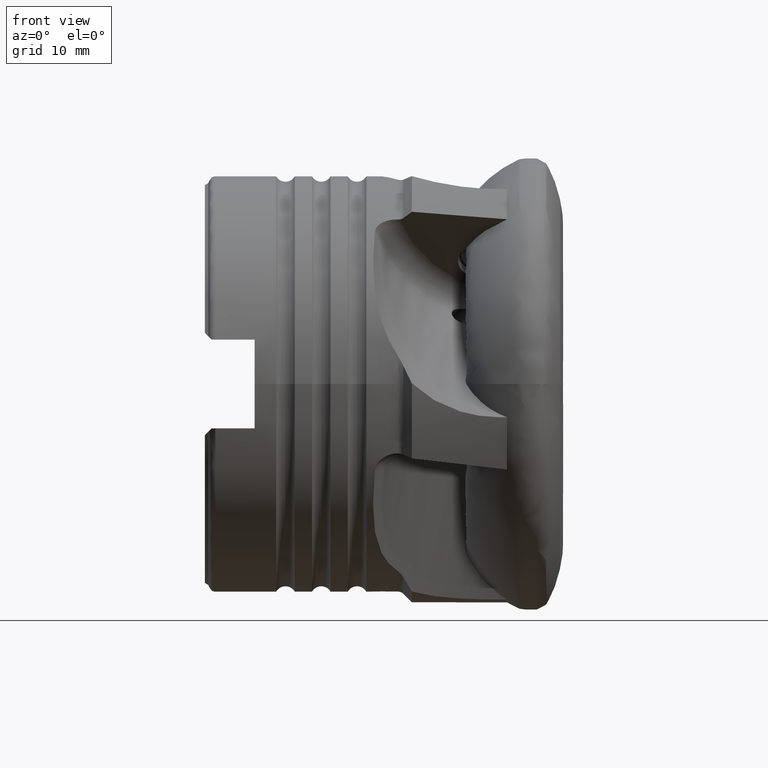
[diagram: clean part render]
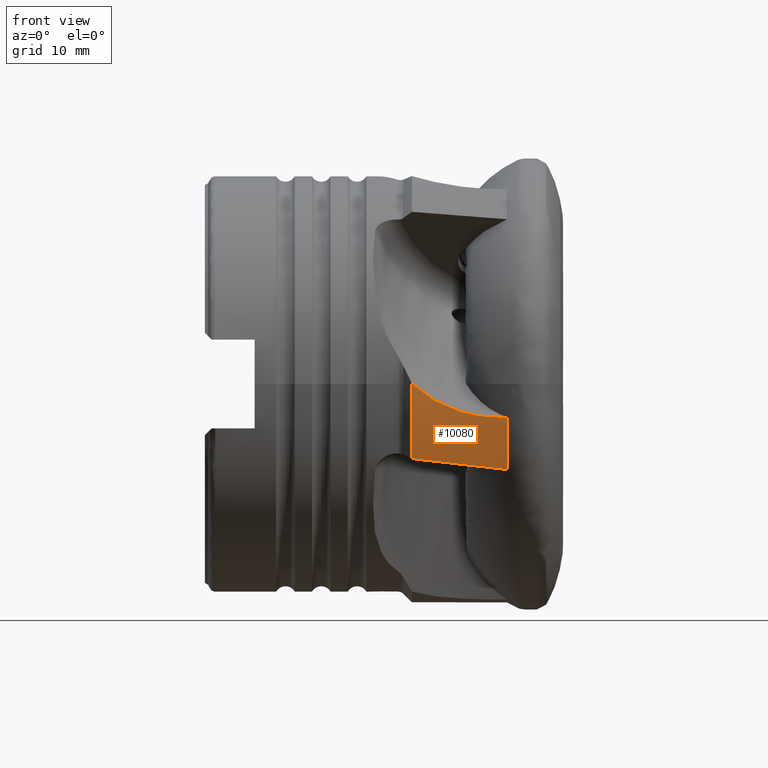
[diagram: same view with one face highlighted and labeled with its STEP entity id]
A machine part, front view. The second image highlights one B-rep face of the part: STEP entity #10080.
In plain terms, the highlighted cylindrical surface (partial cylindrical patch) has radius 30.5 mm, axis along (1, 0, -0).
Its self-contained STEP definition (entity closure, byte-faithful):
#263 = FACE_OUTER_BOUND ( 'NONE', #1314, .T. ) ;
#268 = CYLINDRICAL_SURFACE ( 'NONE', #8733, 30.50000000000000000 ) ;
#343 = CARTESIAN_POINT ( 'NONE',  ( -20.04799999999999100, -30.49984455912607800, 0.09737488971915217500 ) ) ;
#571 = CARTESIAN_POINT ( 'NONE',  ( -6.753366751491511400, -28.06806780517214900, -11.93455360221984700 ) ) ;
#609 = CARTESIAN_POINT ( 'NONE',  ( -6.753366751491509700, -30.14483218111380900, -4.641022815337729300 ) ) ;
#786 = CARTESIAN_POINT ( 'NONE',  ( -20.04799999999999500, -28.66742408804281100, -10.41291487319007200 ) ) ;
#1314 = EDGE_LOOP ( 'NONE', ( #1829, #1831, #1832, #1830, #1836 ) ) ;
#1652 = CIRCLE ( 'NONE', #8364, 30.50000000000000000 ) ;
#1738 = CARTESIAN_POINT ( 'NONE',  ( -7.863172026929033700, -30.14483218111380900, -4.641022815337729300 ) ) ;
#1829 = ORIENTED_EDGE ( 'NONE', *, *, #8272, .T. ) ;
#1830 = ORIENTED_EDGE ( 'NONE', *, *, #8303, .F. ) ;
#1831 = ORIENTED_EDGE ( 'NONE', *, *, #3091, .T. ) ;
#1832 = ORIENTED_EDGE ( 'NONE', *, *, #8295, .T. ) ;
#1836 = ORIENTED_EDGE ( 'NONE', *, *, #8301, .T. ) ;
#1858 = VERTEX_POINT ( 'NONE', #609 ) ;
#1860 = VERTEX_POINT ( 'NONE', #571 ) ;
#2180 = CARTESIAN_POINT ( 'NONE',  ( -6.753366751491515000, -1.467494832552961400E-015, 0.0000000000000000000 ) ) ;
#2181 = DIRECTION ( 'NONE',  ( -1.000000000000000000, -1.194642240504251800E-016, 0.0000000000000000000 ) ) ;
#2182 = DIRECTION ( 'NONE',  ( -1.137523590804463600E-016, 1.000000000000000000, 0.0000000000000000000 ) ) ;
#2635 = VERTEX_POINT ( 'NONE', #786 ) ;
#2725 = VERTEX_POINT ( 'NONE', #343 ) ;
#2736 = VERTEX_POINT ( 'NONE', #1738 ) ;
#3019 =( BOUNDED_CURVE ( )  B_SPLINE_CURVE ( 3, ( #9481, #9480, #9490, #9491 ),
 .UNSPECIFIED., .F., .F. ) 
 B_SPLINE_CURVE_WITH_KNOTS ( ( 4, 4 ),
 ( 4.746643197241860800, 4.800270089141251100 ),
 .UNSPECIFIED. ) 
 CURVE ( )  GEOMETRIC_REPRESENTATION_ITEM ( )  RATIONAL_B_SPLINE_CURVE ( ( 1.000000000000000000, 0.9997603607302221200, 0.9997603607302221200, 1.000000000000000000 ) ) 
 REPRESENTATION_ITEM ( '' )  );
#3025 = B_SPLINE_CURVE_WITH_KNOTS ( 'NONE', 3,
 ( #9588, #9589, #9594, #9595, #9596, #9597, #9598, #9599, #9600, #9601, #9602, #9603 ),
 .UNSPECIFIED., .F., .F.,
 ( 4, 2, 2, 2, 2, 4 ),
 ( 3.719841602556373300E-018, 0.003328988022284079700, 0.004993482033426120900, 0.006657976044568167200, 0.009986964066852259100, 0.01331595208913635200 ),
 .UNSPECIFIED. ) ;
#3091 = EDGE_CURVE ( 'NONE', #1860, #1858, #1652, .T. ) ;
#4293 = LINE ( 'NONE', #9569, #4294 ) ;
#4294 = VECTOR ( 'NONE', #9570, 1000.000000000000000 ) ;
#4301 = CIRCLE ( 'NONE', #8543, 30.50000000000000000 ) ;
#7226 = DIRECTION ( 'NONE',  ( 1.000000000000000000, 1.224606353822377000E-016, -0.0000000000000000000 ) ) ;
#7232 = DIRECTION ( 'NONE',  ( -1.224606353822377000E-016, 1.000000000000000000, 0.0000000000000000000 ) ) ;
#7234 = CARTESIAN_POINT ( 'NONE',  ( 0.0000000000000000000, 0.0000000000000000000, 0.0000000000000000000 ) ) ;
#8272 = EDGE_CURVE ( 'NONE', #2635, #1860, #3019, .T. ) ;
#8295 = EDGE_CURVE ( 'NONE', #1858, #2736, #4293, .T. ) ;
#8301 = EDGE_CURVE ( 'NONE', #2725, #2635, #4301, .T. ) ;
#8303 = EDGE_CURVE ( 'NONE', #2725, #2736, #3025, .T. ) ;
#8364 = AXIS2_PLACEMENT_3D ( 'NONE', #2180, #2181, #2182 ) ;
#8543 = AXIS2_PLACEMENT_3D ( 'NONE', #9585, #9586, #9587 ) ;
#8733 = AXIS2_PLACEMENT_3D ( 'NONE', #7234, #7226, #7232 ) ;
#9480 = CARTESIAN_POINT ( 'NONE',  ( -15.60972042904290500, -28.48126436022642900, -10.92542457200333800 ) ) ;
#9481 = CARTESIAN_POINT ( 'NONE',  ( -20.04799999999999500, -28.66742408804281100, -10.41291487319007200 ) ) ;
#9490 = CARTESIAN_POINT ( 'NONE',  ( -11.17711378625435300, -28.28143104469306800, -11.43275905894591200 ) ) ;
#9491 = CARTESIAN_POINT ( 'NONE',  ( -6.753366751491511400, -28.06806780517214900, -11.93455360221984700 ) ) ;
#9569 = CARTESIAN_POINT ( 'NONE',  ( 4.280082797352348700E-015, -30.14483218111380900, -4.641022815337729300 ) ) ;
#9570 = DIRECTION ( 'NONE',  ( -1.000000000000000000, -1.224606353822377000E-016, 0.0000000000000000000 ) ) ;
#9585 = CARTESIAN_POINT ( 'NONE',  ( -20.04799999999999800, -2.455090818143101600E-015, 0.0000000000000000000 ) ) ;
#9586 = DIRECTION ( 'NONE',  ( 1.000000000000000000, 1.224606353822377000E-016, -0.0000000000000000000 ) ) ;
#9587 = DIRECTION ( 'NONE',  ( -1.137523590804463600E-016, 1.000000000000000000, 0.0000000000000000000 ) ) ;
#9588 = CARTESIAN_POINT ( 'NONE',  ( -20.04799999999999100, -30.49984455912607800, 0.09737488971915217500 ) ) ;
#9589 = CARTESIAN_POINT ( 'NONE',  ( -19.23448322506818200, -30.50233683617048200, -0.6832582146891181800 ) ) ;
#9594 = CARTESIAN_POINT ( 'NONE',  ( -18.35685376438580000, -30.47513363375001600, -1.366511374540284600 ) ) ;
#9595 = CARTESIAN_POINT ( 'NONE',  ( -16.94877905248576500, -30.41807783801419200, -2.253513140282858500 ) ) ;
#9596 = CARTESIAN_POINT ( 'NONE',  ( -16.46407913657268900, -30.39624348804147400, -2.526090813110601000 ) ) ;
#9597 = CARTESIAN_POINT ( 'NONE',  ( -15.46384359003636900, -30.35065056238641600, -3.025022879301797900 ) ) ;
#9598 = CARTESIAN_POINT ( 'NONE',  ( -14.94629622256838000, -30.32681203272322500, -3.251883592009465800 ) ) ;
#9599 = CARTESIAN_POINT ( 'NONE',  ( -13.38008561997940600, -30.25868502759322000, -3.850075357357555000 ) ) ;
#9600 = CARTESIAN_POINT ( 'NONE',  ( -12.30899542745111400, -30.21767157338086600, -4.145158753724014200 ) ) ;
#9601 = CARTESIAN_POINT ( 'NONE',  ( -10.11581044139478900, -30.16070039898657400, -4.541163711303141800 ) ) ;
#9602 = CARTESIAN_POINT ( 'NONE',  ( -8.988957968584248400, -30.14483218111381300, -4.641022815337739100 ) ) ;
#9603 = CARTESIAN_POINT ( 'NONE',  ( -7.863172026929033700, -30.14483218111380900, -4.641022815337729300 ) ) ;
#10080 = ADVANCED_FACE ( 'NONE', ( #263 ), #268, .T. ) ;